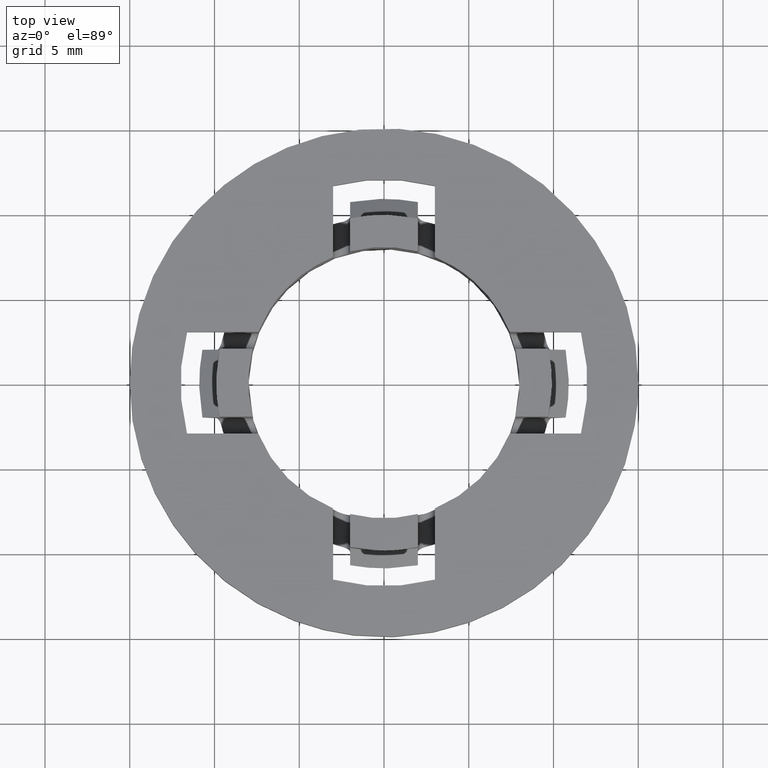
[diagram: clean part render]
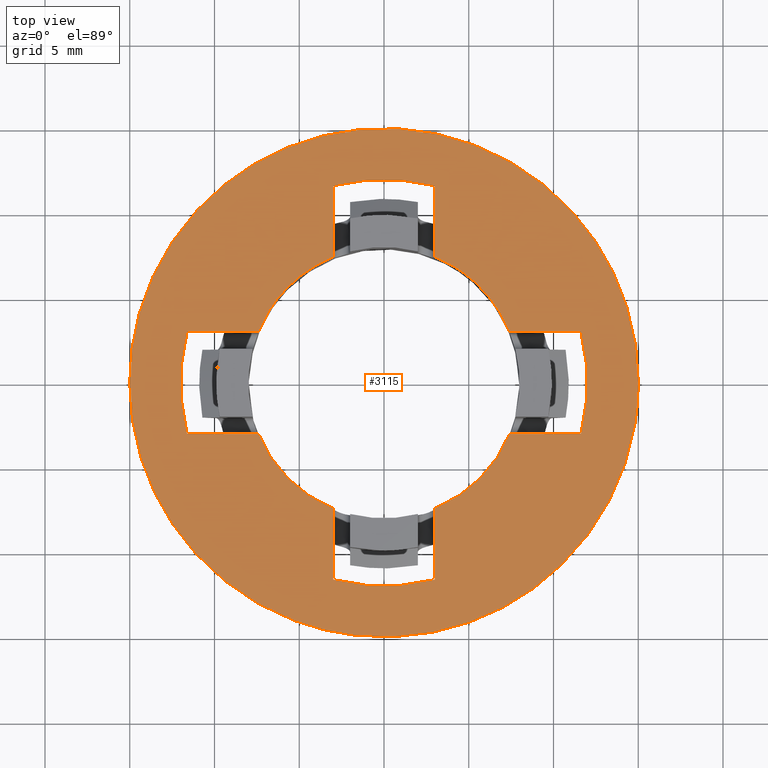
[diagram: same view with one face highlighted and labeled with its STEP entity id]
A machine part, top view. The second image highlights one B-rep face of the part: STEP entity #3115.
In plain terms, the highlighted face is a freeform B-spline surface patch.
Its self-contained STEP definition (entity closure, byte-faithful):
#338=CARTESIAN_POINT('',(-1.770504034684066,-14.895144022904789,7.999999999999790));
#339=VERTEX_POINT('',#338);
#340=CARTESIAN_POINT('',(15.0,0.0,7.999999999999900));
#341=VERTEX_POINT('',#340);
#342=CARTESIAN_POINT('',(-1.770504034684066,-14.895144022904788,7.999999999999790));
#343=CARTESIAN_POINT('',(-0.888357002057461,-14.999999999999998,7.999999999999900));
#344=CARTESIAN_POINT('',(0.0,-15.0,7.999999999999900));
#345=CARTESIAN_POINT('',(14.999999999999996,-14.999999999999996,7.999999999999900));
#346=CARTESIAN_POINT('',(15.0,0.0,7.999999999999900));
#354=(BOUNDED_CURVE()B_SPLINE_CURVE(2,(#342,#343,#344,#345,#346),.UNSPECIFIED.,.F.,.U.)B_SPLINE_CURVE_WITH_KNOTS((3,2,3),(0.229562581136241,0.250000000000000,0.500000000000000),.UNSPECIFIED.)CURVE()GEOMETRIC_REPRESENTATION_ITEM()RATIONAL_B_SPLINE_CURVE((0.956026965128767,0.976056074419019,1.0,0.707106781186547,1.0))REPRESENTATION_ITEM(''));
#355=EDGE_CURVE('',#339,#341,#354,.T.);
#396=CARTESIAN_POINT('',(0.915722735311873,14.972022304017720,7.999999999999828));
#397=VERTEX_POINT('',#396);
#403=CARTESIAN_POINT('',(15.0,0.0,7.999999999999900));
#404=CARTESIAN_POINT('',(15.000000000000007,14.110596062471469,7.999999999999900));
#405=CARTESIAN_POINT('',(0.915722735311873,14.972022304017722,7.999999999999828));
#413=(BOUNDED_CURVE()B_SPLINE_CURVE(2,(#403,#404,#405),.UNSPECIFIED.,.F.,.U.)B_SPLINE_CURVE_WITH_KNOTS((3,3),(0.500000000000000,0.739333023987528),.UNSPECIFIED.)CURVE()GEOMETRIC_REPRESENTATION_ITEM()RATIONAL_B_SPLINE_CURVE((1.0,0.719603920943743,0.976072174005725))REPRESENTATION_ITEM(''));
#414=EDGE_CURVE('',#341,#397,#413,.T.);
#437=CARTESIAN_POINT('',(-15.0,0.0,7.999999999999900));
#438=VERTEX_POINT('',#437);
#439=CARTESIAN_POINT('',(-15.0,0.0,7.999999999999900));
#440=CARTESIAN_POINT('',(-14.999999999999998,-13.322626432785171,7.999999999999899));
#441=CARTESIAN_POINT('',(-1.770504034684066,-14.895144022904788,7.999999999999790));
#449=(BOUNDED_CURVE()B_SPLINE_CURVE(2,(#439,#440,#441),.UNSPECIFIED.,.F.,.U.)B_SPLINE_CURVE_WITH_KNOTS((3,3),(0.0,0.229562581136241),.UNSPECIFIED.)CURVE()GEOMETRIC_REPRESENTATION_ITEM()RATIONAL_B_SPLINE_CURVE((1.0,0.731050706767529,0.956026965128767))REPRESENTATION_ITEM(''));
#450=EDGE_CURVE('',#438,#339,#449,.T.);
#452=CARTESIAN_POINT('',(0.915722735311873,14.972022304017722,7.999999999999828));
#453=CARTESIAN_POINT('',(0.458288763112167,15.000000000000004,7.999999999999901));
#454=CARTESIAN_POINT('',(0.0,15.0,7.999999999999900));
#455=CARTESIAN_POINT('',(-14.999999999999996,14.999999999999996,7.999999999999900));
#456=CARTESIAN_POINT('',(-15.0,0.0,7.999999999999900));
#464=(BOUNDED_CURVE()B_SPLINE_CURVE(2,(#452,#453,#454,#455,#456),.UNSPECIFIED.,.F.,.U.)B_SPLINE_CURVE_WITH_KNOTS((3,2,3),(0.739333023987528,0.750000000000000,1.0),.UNSPECIFIED.)CURVE()GEOMETRIC_REPRESENTATION_ITEM()RATIONAL_B_SPLINE_CURVE((0.976072174005725,0.987502860242804,1.0,0.707106781186547,1.0))REPRESENTATION_ITEM(''));
#465=EDGE_CURVE('',#397,#438,#464,.T.);
#577=CARTESIAN_POINT('',(-5.703623799239622,5.609694782851142,7.999999999999901));
#578=VERTEX_POINT('',#577);
#584=CARTESIAN_POINT('',(-7.416198487095711,2.999999999999885,7.999999999999900));
#585=VERTEX_POINT('',#584);
#586=CARTESIAN_POINT('',(-7.416198487095710,2.999999999999883,7.999999999999900));
#587=CARTESIAN_POINT('',(-6.819461443367961,4.475173453629173,7.999999999999900));
#588=CARTESIAN_POINT('',(-5.703623799239622,5.609694782851142,7.999999999999901));
#596=(BOUNDED_CURVE()B_SPLINE_CURVE(2,(#586,#587,#588),.UNSPECIFIED.,.F.,.U.)B_SPLINE_CURVE_WITH_KNOTS((3,3),(0.0,0.489787018513454),.UNSPECIFIED.)CURVE()GEOMETRIC_REPRESENTATION_ITEM()RATIONAL_B_SPLINE_CURVE((1.0,0.961145476494415,0.960351835435953))REPRESENTATION_ITEM(''));
#597=EDGE_CURVE('',#585,#578,#596,.T.);
#715=CARTESIAN_POINT('',(-7.416198487095620,-3.000000000000115,7.999999999999900));
#716=VERTEX_POINT('',#715);
#722=CARTESIAN_POINT('',(-2.999999999999885,-7.416198487095711,7.999999999999900));
#723=VERTEX_POINT('',#722);
#724=CARTESIAN_POINT('',(-2.999999999999886,-7.416198487095709,7.999999999999900));
#725=CARTESIAN_POINT('',(-6.144276155959089,-6.144276155959278,7.999999999999900));
#726=CARTESIAN_POINT('',(-7.416198487095617,-3.000000000000115,7.999999999999900));
#734=(BOUNDED_CURVE()B_SPLINE_CURVE(2,(#724,#725,#726),.UNSPECIFIED.,.F.,.U.)CURVE()GEOMETRIC_REPRESENTATION_ITEM()QUASI_UNIFORM_CURVE()RATIONAL_B_SPLINE_CURVE((1.0,0.920670573051300,1.0))REPRESENTATION_ITEM(''));
#735=EDGE_CURVE('',#723,#716,#734,.T.);
#853=CARTESIAN_POINT('',(3.000000000000115,-7.416198487095620,7.999999999999900));
#854=VERTEX_POINT('',#853);
#860=CARTESIAN_POINT('',(7.416198487095711,-2.999999999999885,7.999999999999900));
#861=VERTEX_POINT('',#860);
#862=CARTESIAN_POINT('',(7.416198487095709,-2.999999999999887,7.999999999999900));
#863=CARTESIAN_POINT('',(6.144276155959276,-6.144276155959090,7.999999999999900));
#864=CARTESIAN_POINT('',(3.000000000000111,-7.416198487095618,7.999999999999900));
#872=(BOUNDED_CURVE()B_SPLINE_CURVE(2,(#862,#863,#864),.UNSPECIFIED.,.F.,.U.)CURVE()GEOMETRIC_REPRESENTATION_ITEM()QUASI_UNIFORM_CURVE()RATIONAL_B_SPLINE_CURVE((1.0,0.920670573051300,1.0))REPRESENTATION_ITEM(''));
#873=EDGE_CURVE('',#861,#854,#872,.T.);
#991=CARTESIAN_POINT('',(7.416198487095620,3.000000000000115,7.999999999999900));
#992=VERTEX_POINT('',#991);
#998=CARTESIAN_POINT('',(5.274309111885785,6.015119565917064,7.999999999999899));
#999=VERTEX_POINT('',#998);
#1000=CARTESIAN_POINT('',(5.274309111885785,6.015119565917064,7.999999999999899));
#1001=CARTESIAN_POINT('',(6.703432671250707,4.762004255040880,7.999999999999900));
#1002=CARTESIAN_POINT('',(7.416198487095618,3.000000000000112,7.999999999999900));
#1010=(BOUNDED_CURVE()B_SPLINE_CURVE(2,(#1000,#1001,#1002),.UNSPECIFIED.,.F.,.U.)B_SPLINE_CURVE_WITH_KNOTS((3,3),(0.419366019578958,1.0),.UNSPECIFIED.)CURVE()GEOMETRIC_REPRESENTATION_ITEM()RATIONAL_B_SPLINE_CURVE((0.961366860817652,0.953938639066256,1.0))REPRESENTATION_ITEM(''));
#1011=EDGE_CURVE('',#999,#992,#1010,.T.);
#1051=CARTESIAN_POINT('',(2.999999999999885,7.416198487095711,7.999999999999900));
#1052=VERTEX_POINT('',#1051);
#1053=CARTESIAN_POINT('',(2.999999999999885,7.416198487095709,7.999999999999900));
#1054=CARTESIAN_POINT('',(4.255775822209063,6.908212155124875,7.999999999999899));
#1055=CARTESIAN_POINT('',(5.274309111885785,6.015119565917064,7.999999999999899));
#1063=(BOUNDED_CURVE()B_SPLINE_CURVE(2,(#1053,#1054,#1055),.UNSPECIFIED.,.F.,.U.)B_SPLINE_CURVE_WITH_KNOTS((3,3),(0.0,0.419366019578958),.UNSPECIFIED.)CURVE()GEOMETRIC_REPRESENTATION_ITEM()RATIONAL_B_SPLINE_CURVE((1.0,0.966731933985044,0.961366860817652))REPRESENTATION_ITEM(''));
#1064=EDGE_CURVE('',#1052,#999,#1063,.T.);
#1182=CARTESIAN_POINT('',(-3.000000000000115,7.416198487095620,7.999999999999900));
#1183=VERTEX_POINT('',#1182);
#1189=CARTESIAN_POINT('',(-5.703623799239622,5.609694782851143,7.999999999999901));
#1190=CARTESIAN_POINT('',(-4.539288804053278,6.793525507105279,7.999999999999900));
#1191=CARTESIAN_POINT('',(-3.000000000000112,7.416198487095618,7.999999999999900));
#1199=(BOUNDED_CURVE()B_SPLINE_CURVE(2,(#1189,#1190,#1191),.UNSPECIFIED.,.F.,.U.)B_SPLINE_CURVE_WITH_KNOTS((3,3),(0.489787018513454,1.0),.UNSPECIFIED.)CURVE()GEOMETRIC_REPRESENTATION_ITEM()RATIONAL_B_SPLINE_CURVE((0.960351835435953,0.959525096556884,1.0))REPRESENTATION_ITEM(''));
#1200=EDGE_CURVE('',#578,#1183,#1199,.T.);
#1706=CARTESIAN_POINT('',(11.618950038622140,-2.999999999999880,7.999999999999900));
#1707=VERTEX_POINT('',#1706);
#1708=CARTESIAN_POINT('',(11.618950038622140,-2.999999999999880,7.999999999999900));
#1709=CARTESIAN_POINT('',(7.416198487095711,-2.999999999999885,7.999999999999900));
#1710=QUASI_UNIFORM_CURVE('',1,(#1708,#1709),.UNSPECIFIED.,.F.,.U.);
#1711=EDGE_CURVE('',#1707,#861,#1710,.T.);
#1742=CARTESIAN_POINT('',(11.618950038622140,3.000000000000115,7.999999999999900));
#1743=VERTEX_POINT('',#1742);
#1744=CARTESIAN_POINT('',(11.618950038622140,-2.999999999999877,7.999999999999900));
#1745=CARTESIAN_POINT('',(12.393546707863619,1.186239E-013,7.999999999999900));
#1746=CARTESIAN_POINT('',(11.618950038622140,3.000000000000111,7.999999999999900));
#1754=(BOUNDED_CURVE()B_SPLINE_CURVE(2,(#1744,#1745,#1746),.UNSPECIFIED.,.F.,.U.)CURVE()GEOMETRIC_REPRESENTATION_ITEM()QUASI_UNIFORM_CURVE()RATIONAL_B_SPLINE_CURVE((1.0,0.968245836551854,1.0))REPRESENTATION_ITEM(''));
#1755=EDGE_CURVE('',#1707,#1743,#1754,.T.);
#1801=CARTESIAN_POINT('',(7.416198487095620,3.000000000000115,7.999999999999900));
#1802=CARTESIAN_POINT('',(11.618950038622140,3.000000000000115,7.999999999999900));
#1803=QUASI_UNIFORM_CURVE('',1,(#1801,#1802),.UNSPECIFIED.,.F.,.U.);
#1804=EDGE_CURVE('',#992,#1743,#1803,.T.);
#1823=CARTESIAN_POINT('',(-2.999999999999880,-11.618950038622140,7.999999999999900));
#1824=VERTEX_POINT('',#1823);
#1825=CARTESIAN_POINT('',(-2.999999999999880,-11.618950038622140,7.999999999999900));
#1826=CARTESIAN_POINT('',(-2.999999999999885,-7.416198487095711,7.999999999999900));
#1827=QUASI_UNIFORM_CURVE('',1,(#1825,#1826),.UNSPECIFIED.,.F.,.U.);
#1828=EDGE_CURVE('',#1824,#723,#1827,.T.);
#1859=CARTESIAN_POINT('',(3.000000000000115,-11.618950038622140,7.999999999999900));
#1860=VERTEX_POINT('',#1859);
#1861=CARTESIAN_POINT('',(-2.999999999999882,-11.618950038622140,7.999999999999900));
#1862=CARTESIAN_POINT('',(1.116850E-013,-12.393546707863619,7.999999999999900));
#1863=CARTESIAN_POINT('',(3.000000000000112,-11.618950038622140,7.999999999999900));
#1871=(BOUNDED_CURVE()B_SPLINE_CURVE(2,(#1861,#1862,#1863),.UNSPECIFIED.,.F.,.U.)CURVE()GEOMETRIC_REPRESENTATION_ITEM()QUASI_UNIFORM_CURVE()RATIONAL_B_SPLINE_CURVE((1.0,0.968245836551854,1.0))REPRESENTATION_ITEM(''));
#1872=EDGE_CURVE('',#1824,#1860,#1871,.T.);
#1918=CARTESIAN_POINT('',(3.000000000000115,-7.416198487095620,7.999999999999900));
#1919=CARTESIAN_POINT('',(3.000000000000115,-11.618950038622140,7.999999999999900));
#1920=QUASI_UNIFORM_CURVE('',1,(#1918,#1919),.UNSPECIFIED.,.F.,.U.);
#1921=EDGE_CURVE('',#854,#1860,#1920,.T.);
#1940=CARTESIAN_POINT('',(-11.618950038622140,2.999999999999880,7.999999999999900));
#1941=VERTEX_POINT('',#1940);
#1942=CARTESIAN_POINT('',(-11.618950038622140,2.999999999999880,7.999999999999900));
#1943=CARTESIAN_POINT('',(-7.416198487095711,2.999999999999885,7.999999999999900));
#1944=QUASI_UNIFORM_CURVE('',1,(#1942,#1943),.UNSPECIFIED.,.F.,.U.);
#1945=EDGE_CURVE('',#1941,#585,#1944,.T.);
#1976=CARTESIAN_POINT('',(-11.618950038622140,-3.000000000000115,7.999999999999900));
#1977=VERTEX_POINT('',#1976);
#1978=CARTESIAN_POINT('',(-11.618950038622140,2.999999999999884,7.999999999999900));
#1979=CARTESIAN_POINT('',(-12.393546707863621,-1.108176E-013,7.999999999999900));
#1980=CARTESIAN_POINT('',(-11.618950038622140,-3.000000000000110,7.999999999999900));
#1988=(BOUNDED_CURVE()B_SPLINE_CURVE(2,(#1978,#1979,#1980),.UNSPECIFIED.,.F.,.U.)CURVE()GEOMETRIC_REPRESENTATION_ITEM()QUASI_UNIFORM_CURVE()RATIONAL_B_SPLINE_CURVE((1.0,0.968245836551854,1.0))REPRESENTATION_ITEM(''));
#1989=EDGE_CURVE('',#1941,#1977,#1988,.T.);
#2035=CARTESIAN_POINT('',(-7.416198487095620,-3.000000000000115,7.999999999999900));
#2036=CARTESIAN_POINT('',(-11.618950038622140,-3.000000000000115,7.999999999999900));
#2037=QUASI_UNIFORM_CURVE('',1,(#2035,#2036),.UNSPECIFIED.,.F.,.U.);
#2038=EDGE_CURVE('',#716,#1977,#2037,.T.);
#2219=CARTESIAN_POINT('',(2.999999999999880,11.618950038622140,7.999999999999900));
#2220=VERTEX_POINT('',#2219);
#2221=CARTESIAN_POINT('',(2.999999999999880,11.618950038622140,7.999999999999900));
#2222=CARTESIAN_POINT('',(2.999999999999885,7.416198487095711,7.999999999999900));
#2223=QUASI_UNIFORM_CURVE('',1,(#2221,#2222),.UNSPECIFIED.,.F.,.U.);
#2224=EDGE_CURVE('',#2220,#1052,#2223,.T.);
#2255=CARTESIAN_POINT('',(-3.000000000000115,11.618950038622140,7.999999999999900));
#2256=VERTEX_POINT('',#2255);
#2257=CARTESIAN_POINT('',(2.999999999999883,11.618950038622140,7.999999999999900));
#2258=CARTESIAN_POINT('',(-1.125523E-013,12.393546707863619,7.999999999999900));
#2259=CARTESIAN_POINT('',(-3.000000000000110,11.618950038622140,7.999999999999900));
#2267=(BOUNDED_CURVE()B_SPLINE_CURVE(2,(#2257,#2258,#2259),.UNSPECIFIED.,.F.,.U.)CURVE()GEOMETRIC_REPRESENTATION_ITEM()QUASI_UNIFORM_CURVE()RATIONAL_B_SPLINE_CURVE((1.0,0.968245836551854,1.0))REPRESENTATION_ITEM(''));
#2268=EDGE_CURVE('',#2220,#2256,#2267,.T.);
#2314=CARTESIAN_POINT('',(-3.000000000000115,7.416198487095620,7.999999999999900));
#2315=CARTESIAN_POINT('',(-3.000000000000115,11.618950038622140,7.999999999999900));
#2316=QUASI_UNIFORM_CURVE('',1,(#2314,#2315),.UNSPECIFIED.,.F.,.U.);
#2317=EDGE_CURVE('',#1183,#2256,#2316,.T.);
#3084=CARTESIAN_POINT('',(-16.498499941854181,16.498135418423999,7.999999999999900));
#3085=CARTESIAN_POINT('',(16.498500746516889,16.498135418423999,7.999999999999900));
#3086=CARTESIAN_POINT('',(-16.498499941854181,-16.498227149972308,7.999999999999900));
#3087=CARTESIAN_POINT('',(16.498500746516889,-16.498227149972308,7.999999999999900));
#3088=B_SPLINE_SURFACE_WITH_KNOTS('',1,1,((#3084,#3086),(#3085,#3087)),.UNSPECIFIED.,.F.,.F.,.U.,(2,2),(2,2),(0.0,32.997000688371060),(0.0,32.996362568396307),.UNSPECIFIED.);
#3089=ORIENTED_EDGE('',*,*,#450,.T.);
#3090=ORIENTED_EDGE('',*,*,#355,.T.);
#3091=ORIENTED_EDGE('',*,*,#414,.T.);
#3092=ORIENTED_EDGE('',*,*,#465,.T.);
#3093=EDGE_LOOP('',(#3089,#3090,#3091,#3092));
#3094=FACE_OUTER_BOUND('',#3093,.T.);
#3095=ORIENTED_EDGE('',*,*,#1804,.T.);
#3096=ORIENTED_EDGE('',*,*,#1755,.F.);
#3097=ORIENTED_EDGE('',*,*,#1711,.T.);
#3098=ORIENTED_EDGE('',*,*,#873,.T.);
#3099=ORIENTED_EDGE('',*,*,#1921,.T.);
#3100=ORIENTED_EDGE('',*,*,#1872,.F.);
#3101=ORIENTED_EDGE('',*,*,#1828,.T.);
#3102=ORIENTED_EDGE('',*,*,#735,.T.);
#3103=ORIENTED_EDGE('',*,*,#2038,.T.);
#3104=ORIENTED_EDGE('',*,*,#1989,.F.);
#3105=ORIENTED_EDGE('',*,*,#1945,.T.);
#3106=ORIENTED_EDGE('',*,*,#597,.T.);
#3107=ORIENTED_EDGE('',*,*,#1200,.T.);
#3108=ORIENTED_EDGE('',*,*,#2317,.T.);
#3109=ORIENTED_EDGE('',*,*,#2268,.F.);
#3110=ORIENTED_EDGE('',*,*,#2224,.T.);
#3111=ORIENTED_EDGE('',*,*,#1064,.T.);
#3112=ORIENTED_EDGE('',*,*,#1011,.T.);
#3113=EDGE_LOOP('',(#3095,#3096,#3097,#3098,#3099,#3100,#3101,#3102,#3103,#3104,#3105,#3106,#3107,#3108,#3109,#3110,#3111,#3112));
#3114=FACE_BOUND('',#3113,.T.);
#3115=ADVANCED_FACE('',(#3094,#3114),#3088,.F.);